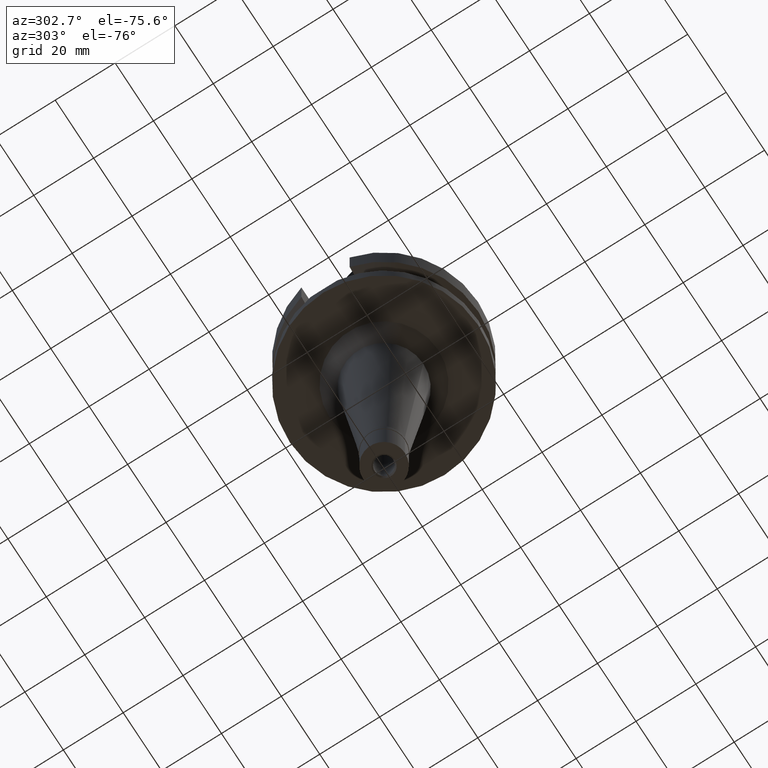
[diagram: clean part render]
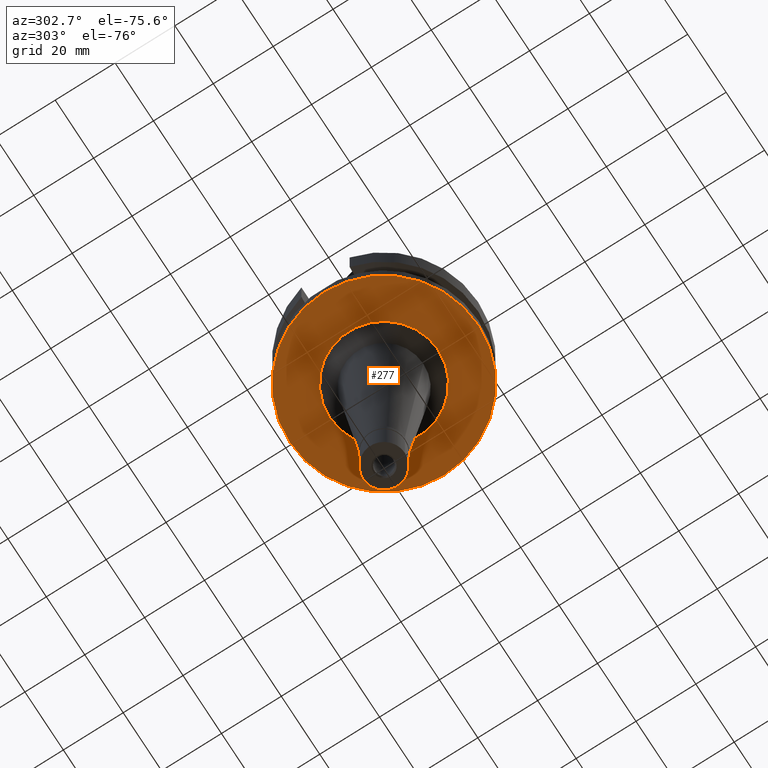
[diagram: same view with one face highlighted and labeled with its STEP entity id]
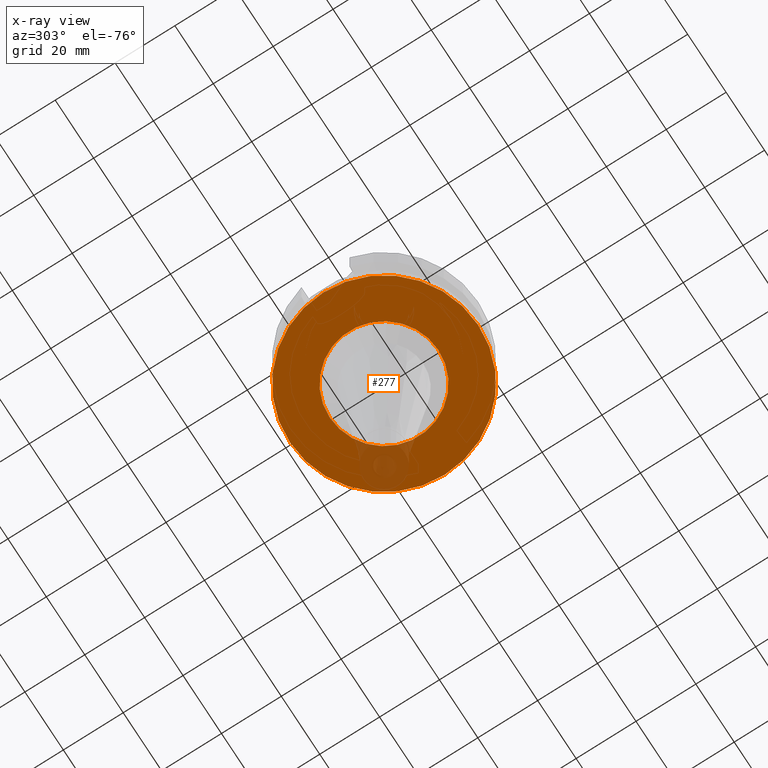
[diagram: x-ray of the same camera — body ghosted, the highlighted face saturated]
A machine part, auxiliary view. The second image highlights one B-rep face of the part: STEP entity #277.
The next image is the same camera in x-ray: the body ghosted, the highlighted face saturated — about 8% of this face is hidden behind the body in this view.
In plain terms, the highlighted planar face has unit normal (0, 0, -1).
Its self-contained STEP definition (entity closure, byte-faithful):
#3 = VERTEX_POINT ( 'NONE', #1558 ) ;
#25 = CIRCLE ( 'NONE', #171, 18.15045304586999819 ) ;
#131 = CIRCLE ( 'NONE', #1819, 18.15045304586999819 ) ;
#171 = AXIS2_PLACEMENT_3D ( 'NONE', #1660, #972, #1891 ) ;
#234 = VERTEX_POINT ( 'NONE', #1076 ) ;
#256 = DIRECTION ( 'NONE',  ( 0.0000000000000000000, 0.0000000000000000000, 1.000000000000000000 ) ) ;
#277 = ADVANCED_FACE ( 'NONE', ( #1532, #613 ), #2896, .T. ) ;
#385 = ORIENTED_EDGE ( 'NONE', *, *, #2286, .F. ) ;
#479 = DIRECTION ( 'NONE',  ( 0.0000000000000000000, 0.0000000000000000000, -1.000000000000000000 ) ) ;
#490 = DIRECTION ( 'NONE',  ( 0.0000000000000000000, 1.000000000000000000, 0.0000000000000000000 ) ) ;
#613 = FACE_BOUND ( 'NONE', #817, .T. ) ;
#682 = CARTESIAN_POINT ( 'NONE',  ( 0.0000000000000000000, -18.15045304586999819, -27.00000000000000000 ) ) ;
#728 = DIRECTION ( 'NONE',  ( 0.0000000000000000000, 0.0000000000000000000, 1.000000000000000000 ) ) ;
#817 = EDGE_LOOP ( 'NONE', ( #1894, #1345 ) ) ;
#822 = ORIENTED_EDGE ( 'NONE', *, *, #2772, .F. ) ;
#972 = DIRECTION ( 'NONE',  ( 0.0000000000000000000, 0.0000000000000000000, -1.000000000000000000 ) ) ;
#1076 = CARTESIAN_POINT ( 'NONE',  ( 0.0000000000000000000, -31.50000000000000000, -27.00000000000000000 ) ) ;
#1239 = CARTESIAN_POINT ( 'NONE',  ( 0.0000000000000000000, 31.50000000000000000, -27.00000000000000000 ) ) ;
#1305 = CARTESIAN_POINT ( 'NONE',  ( 0.0000000000000000000, 0.0000000000000000000, -27.00000000000000000 ) ) ;
#1345 = ORIENTED_EDGE ( 'NONE', *, *, #2695, .F. ) ;
#1406 = DIRECTION ( 'NONE',  ( 0.0000000000000000000, -1.000000000000000000, 0.0000000000000000000 ) ) ;
#1463 = CARTESIAN_POINT ( 'NONE',  ( 0.0000000000000000000, 2.136641270472000125E-14, -27.00000000000000000 ) ) ;
#1532 = FACE_OUTER_BOUND ( 'NONE', #2594, .T. ) ;
#1553 = AXIS2_PLACEMENT_3D ( 'NONE', #2127, #256, #1406 ) ;
#1558 = CARTESIAN_POINT ( 'NONE',  ( 0.0000000000000000000, 18.15045304586999819, -27.00000000000000000 ) ) ;
#1604 = CARTESIAN_POINT ( 'NONE',  ( 0.0000000000000000000, 0.0000000000000000000, -27.00000000000000000 ) ) ;
#1660 = CARTESIAN_POINT ( 'NONE',  ( 0.0000000000000000000, 0.0000000000000000000, -27.00000000000000000 ) ) ;
#1721 = EDGE_CURVE ( 'NONE', #3, #2201, #131, .T. ) ;
#1819 = AXIS2_PLACEMENT_3D ( 'NONE', #1604, #479, #2087 ) ;
#1891 = DIRECTION ( 'NONE',  ( 0.0000000000000000000, -1.000000000000000000, 0.0000000000000000000 ) ) ;
#1894 = ORIENTED_EDGE ( 'NONE', *, *, #1721, .F. ) ;
#2033 = AXIS2_PLACEMENT_3D ( 'NONE', #1463, #728, #490 ) ;
#2087 = DIRECTION ( 'NONE',  ( 0.0000000000000000000, 1.000000000000000000, 0.0000000000000000000 ) ) ;
#2127 = CARTESIAN_POINT ( 'NONE',  ( 0.0000000000000000000, 2.136641270472000125E-14, -27.00000000000000000 ) ) ;
#2200 = DIRECTION ( 'NONE',  ( 0.0000000000000000000, 0.0000000000000000000, -1.000000000000000000 ) ) ;
#2201 = VERTEX_POINT ( 'NONE', #682 ) ;
#2272 = CIRCLE ( 'NONE', #1553, 31.50000000000000000 ) ;
#2286 = EDGE_CURVE ( 'NONE', #2841, #234, #2369, .T. ) ;
#2369 = CIRCLE ( 'NONE', #2033, 31.50000000000000000 ) ;
#2431 = DIRECTION ( 'NONE',  ( 0.0000000000000000000, -1.000000000000000000, 0.0000000000000000000 ) ) ;
#2476 = AXIS2_PLACEMENT_3D ( 'NONE', #1305, #2200, #2431 ) ;
#2594 = EDGE_LOOP ( 'NONE', ( #385, #822 ) ) ;
#2695 = EDGE_CURVE ( 'NONE', #2201, #3, #25, .T. ) ;
#2772 = EDGE_CURVE ( 'NONE', #234, #2841, #2272, .T. ) ;
#2841 = VERTEX_POINT ( 'NONE', #1239 ) ;
#2896 = PLANE ( 'NONE',  #2476 ) ;